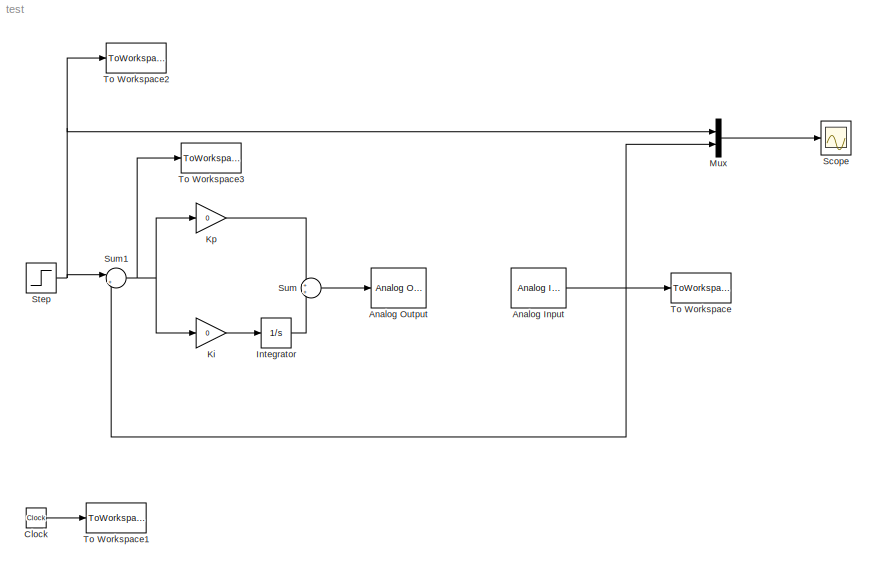
MODEL test
KIND model
BLOCK [Reference] Analog Input  REF=rtwinlib/Analog Input
  AttributesFormatString = Advantech\\nPCI-1711 [auto]
  Channels = 1
  DataType = 1
  DrvAddress = 4294967295
  DrvName = Advantech/PCI-1711
  DrvOptions = zeros(1,0)
  MaxMissedTicks = 10
  Ports = [0, 1]
  RangeMode = 1
  SID = 1
  SampleTime = 0.01
  ShowMissedTicks = off
  SourceBlock = rtwinlib/Analog Input
  SourceType = RTWin Analog Input
  VoltRange = 1
  YieldWhenWaiting = off
BLOCK [Reference] Analog Output  REF=rtwinlib/Analog Output
  AttributesFormatString = Advantech\\nPCI-1711 [auto]
  Channels = 1
  DrvAddress = 4294967295
  DrvName = Advantech/PCI-1711
  DrvOptions = zeros(1,0)
  FinalValue = 0
  InitialValue = []
  MaxMissedTicks = 10
  Ports = [1]
  RangeMode = 1
  SID = 8
  SampleTime = 0.01
  ShowMissedTicks = off
  SourceBlock = rtwinlib/Analog Output
  SourceType = RTWin Analog Output
  VoltRange = 2
  YieldWhenWaiting = off
BLOCK [Clock] Clock
  SID = 3
BLOCK [Integrator] Integrator
  Ports = [1, 1]
  SID = 11
BLOCK [Gain] Ki
  Gain = 0
  OutDataTypeStr = Inherit: Inherit via internal rule
  ParamDataTypeStr = Inherit: Inherit via internal rule
  SID = 12
  SaturateOnIntegerOverflow = off
BLOCK [Gain] Kp
  Gain = 0
  OutDataTypeStr = Inherit: Inherit via internal rule
  ParamDataTypeStr = Inherit: Inherit via internal rule
  SID = 9
  SaturateOnIntegerOverflow = off
BLOCK [Mux] Mux
  DisplayOption = bar
  Inputs = 2
  Ports = [2, 1]
  SID = 15
BLOCK [Scope] Scope
  Floating = off
  MaxDataPoints = 5000000
  NumInputPorts = 1
  Ports = [1]
  SID = 4
  SampleTime = 0
  SaveName = Data
  ShowLegends = off
  YMax = 5.5
  YMin = 0
BLOCK [Step] Step
  After = 6
  SID = 14
  SampleTime = 0
BLOCK [Sum] Sum
  IconShape = round
  InputSameDT = off
  OutDataTypeStr = Inherit: Inherit via internal rule
  Ports = [2, 1]
  SID = 10
  SaturateOnIntegerOverflow = off
BLOCK [Sum] Sum1
  IconShape = round
  InputSameDT = off
  Inputs = |+-
  OutDataTypeStr = Inherit: Inherit via internal rule
  Ports = [2, 1]
  SID = 13
  SaturateOnIntegerOverflow = off
BLOCK [ToWorkspace] To Workspace
  MaxDataPoints = inf
  Ports = [1]
  SID = 5
  SampleTime = -1
  VariableName = y
BLOCK [ToWorkspace] To Workspace1
  MaxDataPoints = inf
  Ports = [1]
  SID = 6
  SampleTime = -1
  VariableName = t
BLOCK [ToWorkspace] To Workspace2
  MaxDataPoints = inf
  Ports = [1]
  SID = 27
  SampleTime = -1
  VariableName = u
BLOCK [ToWorkspace] To Workspace3
  MaxDataPoints = inf
  Ports = [1]
  SID = 28
  SampleTime = -1
  VariableName = error
NET Analog Input:1 -> Mux:2, Sum1:2, To Workspace:1
LINE Clock:1 -> To Workspace1:1
LINE Integrator:1 -> Sum:2
LINE Ki:1 -> Integrator:1
LINE Kp:1 -> Sum:1
LINE Mux:1 -> Scope:1
NET Step:1 -> Mux:1, Sum1:1, To Workspace2:1
NET Sum1:1 -> Ki:1, Kp:1, To Workspace3:1
LINE Sum:1 -> Analog Output:1
note: NET lines group one-source signal fan-out (src -> all destinations, sorted); 1:1 wires keep LINE
